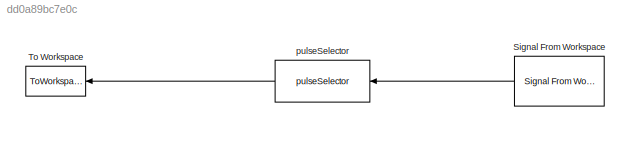
MODEL slx_dd0a89bc7e0c
KIND model
CONFIG StopFcn = OutputPlotting;
BLOCK [Reference] Signal From Workspace  REF=dspsrcs4/Signal From
Workspace
  OutputAfterFinalValue = Setting to zero
  Ports = [0, 1]
  SourceBlock = dspsrcs4/Signal From\nWorkspace
  SourceType = Signal From Workspace
  Ts = 1
  X = inputsignal
  ignoreOrWarnInputAndFrameLengths = off
  nsamps = 1
BLOCK [ToWorkspace] To Workspace
  FixptAsFi = on
  MaxDataPoints = inf
  Ports = [1]
  SampleTime = -1
  Save2DSignal = 3-D array (concatenate along third dimension)
  SaveFormat = Timeseries
  VariableName = simout
BLOCK [Reference] pulseSelector  REF=BlockLib/pulseSelector
  OutputDimensions = 1
  PCID = PC1.ID
  Ports = [1, 1]
  SourceBlock = BlockLib/pulseSelector
LINE Signal From Workspace:1 -> pulseSelector:1
LINE pulseSelector:1 -> To Workspace:1
